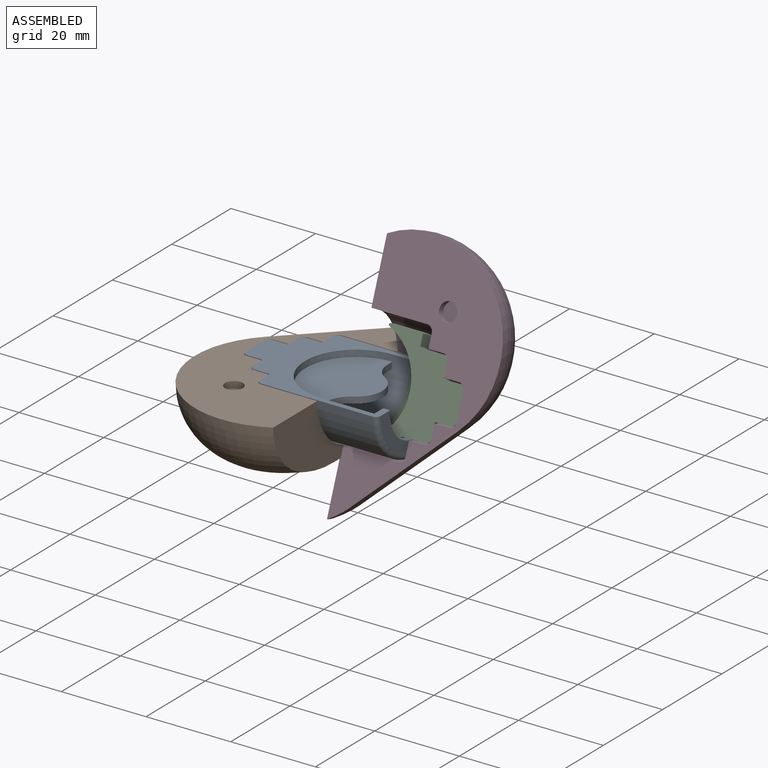
[diagram: assembled view]
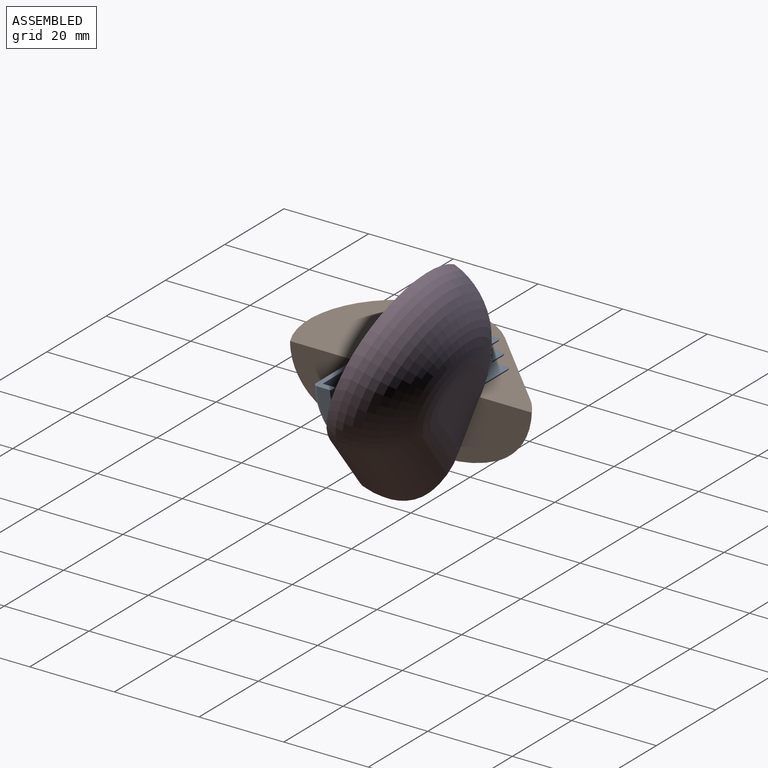
[diagram: assembled view, second angle]
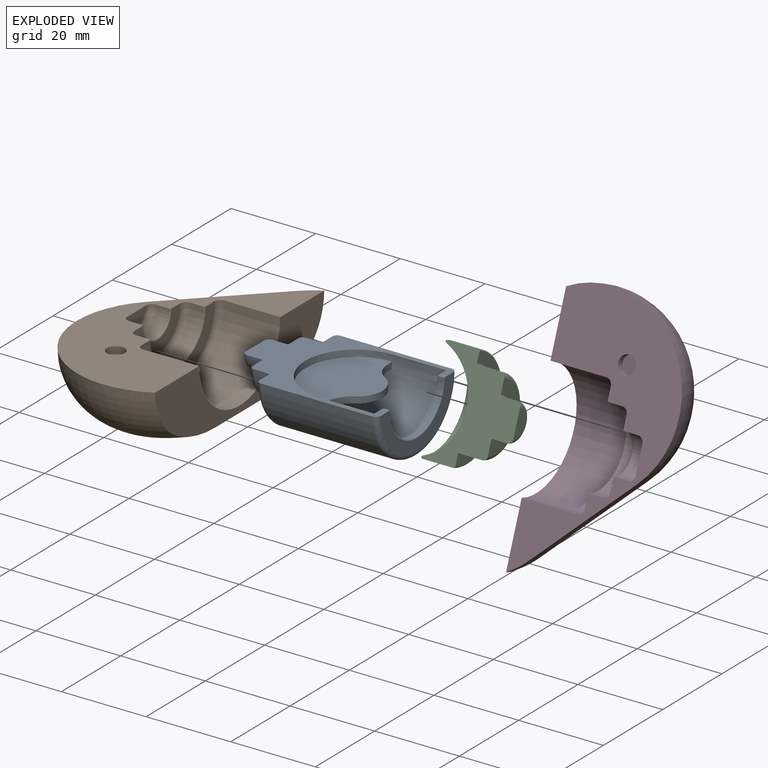
[diagram: exploded view]
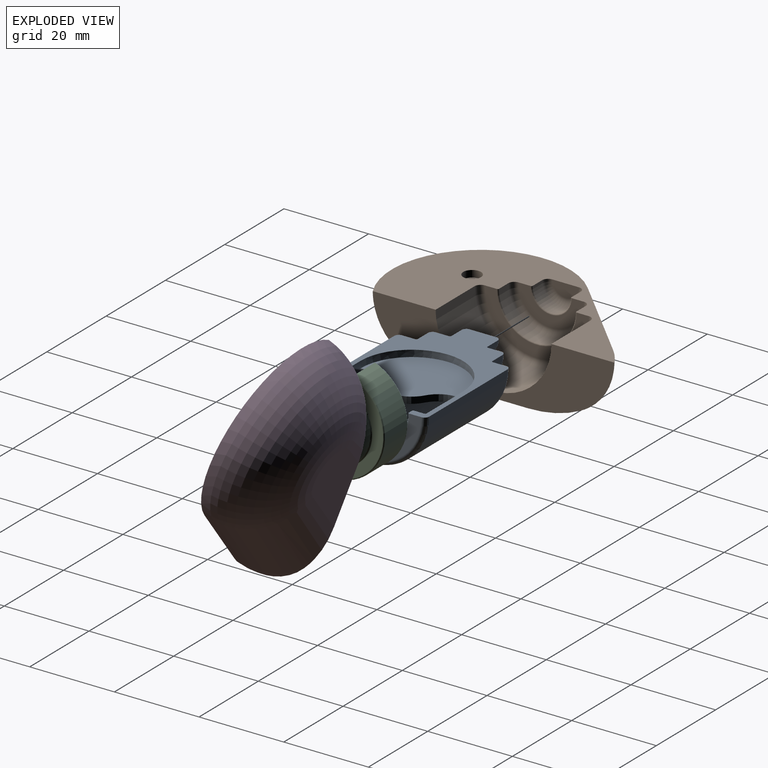
[diagram: exploded view, second angle]
ASSEMBLY  parts=4 mates=3
PART A: 29 faces, bbox 38.3x29x14.5 mm
  f0: sphere r=12.16mm, area 348.4mm2, adj f4,f24
  f1: plane 38.3x26.75mm, normal (0,0,1), area 319.6mm2, adj f2,f3,f4,f5,f6,f7,f8,f9
  f2: cylinder r=9.12mm len=18.24mm, axis (-1,0,0), area 28.3mm2, adj f1,f17,f21
  f3: sphere r=12.16mm, area 58.1mm2, adj f1,f4,f25
  f4: cylinder r=12.16mm len=24.32mm, axis (-1,0,0), area 473.2mm2, adj f0,f1,f3,f20,f22,f23
  f5: plane 23.71x11.86mm, normal (-1,0,0), area 81.3mm2, adj f1,f20,f21
  f6: plane 24.57x12.29mm, normal (1,0,0), area 97.6mm2, adj f1,f16,f17
  f7: cylinder r=13.38mm len=26.75mm, axis (1,0,0), area 1109.2mm2, adj f1,f8,f16
  f8: torus R=12.29mm, axis (1,0,0), area 69.8mm2, adj f1,f7,f9
  f9: plane 24.57x12.29mm, normal (-1,0,0), area 106.5mm2, adj f1,f8,f18
  f10: cylinder r=8.82mm len=17.63mm, axis (1,0,0), area 96.1mm2, adj f1,f11,f18
  f11: torus R=7.73mm, axis (1,0,0), area 45.3mm2, adj f1,f10,f12
  f12: plane 15.45x7.73mm, normal (-1,0,0), area 61.1mm2, adj f1,f11,f19
  f13: cylinder r=4.26mm len=8.51mm, axis (1,0,0), area 46.4mm2, adj f1,f14,f19
  f14: torus R=3.17mm, axis (1,0,0), area 20.8mm2, adj f1,f13,f15
  f15: plane 6.33x3.17mm, normal (-1,0,0), area 15.7mm2, adj f1,f14
  f16: torus R=12.29mm, axis (1,0,0), area 69.8mm2, adj f1,f6,f7
  f17: torus R=9.42mm, axis (1,0,0), area 13.8mm2, adj f1,f2,f6
  f18: torus R=9.12mm, axis (1,0,0), area 13.4mm2, adj f1,f9,f10
  f19: torus R=4.56mm, axis (-1,0,0), area 6.6mm2, adj f1,f12,f13
  f20: torus R=11.86mm, axis (1,0,0), area 18.1mm2, adj f1,f4,f5
  f21: torus R=9.42mm, axis (1,0,0), area 13.8mm2, adj f1,f2,f5
  f22: plane 1.53x1.52mm, normal (1,0,0), area 2.1mm2, adj f4,f24,f25,f27
  f23: plane 1.53x1.52mm, normal (1,0,0), area 2.1mm2, adj f4,f24,f25,f28
  f24: plane 23.55x17.85mm, normal (0,0,-1), area 281.8mm2, adj f0,f22,f23,f26,f27,f28
  f25: plane 24.13x18.14mm, normal (0,0,1), area 292.7mm2, adj f3,f22,f23,f26,f27,f28
  f26: cylinder r=6.08mm len=10.53mm, axis (0,0,1), area 19.4mm2, adj f24,f25,f27,f28
  f27: cylinder r=6.08mm len=5.27mm, axis (0,0,1), area 9.7mm2, adj f22,f24,f25,f26
  f28: cylinder r=6.08mm len=5.27mm, axis (0,0,1), area 9.7mm2, adj f23,f24,f25,f26
PART B: 20 faces, bbox 37.5x59.7x15.2 mm
  f0: plane 59.74x31.29mm, normal (0,0,1), area 758mm2, adj f3,f4,f5,f6,f7,f8,f9,f10
  f1: cylinder r=15.2mm len=12.4mm, axis (-0.71,-0.7,0), area 39.6mm2, adj f2,f5,f6
  f2: plane 24.19x16.09mm, normal (0,0,-1), area 221mm2, adj f1,f3,f5,f6
  f3: cylinder r=15.2mm len=31.29mm, axis (0.71,0.7,0), area 652.8mm2, adj f0,f2,f4,f5,f6
  f4: torus R=5.8mm, axis (0,0,1), area 54.8mm2, adj f0,f3,f6
  f5: torus R=5.8mm, axis (0,0,1), area 1106.1mm2, adj f0,f1,f2,f3,f6
  f6: plane 57.05x15.21mm, normal (1,0,0), area 449.8mm2, adj f0,f1,f2,f3,f4,f5,f7
  f7: cylinder r=13.68mm len=27.36mm, axis (1,0,0), area 567.2mm2, adj f0,f6,f8
  f8: torus R=12.29mm, axis (1,0,0), area 90.6mm2, adj f0,f7,f9
  f9: plane 24.57x12.29mm, normal (1,0,0), area 97.6mm2, adj f0,f8,f17
  f10: cylinder r=9.12mm len=18.24mm, axis (1,0,0), area 90.7mm2, adj f0,f11,f17
  f11: torus R=7.73mm, axis (1,0,0), area 59.2mm2, adj f0,f10,f12
  f12: plane 15.45x7.73mm, normal (1,0,0), area 56.6mm2, adj f0,f11,f16
  f13: cylinder r=4.56mm len=9.12mm, axis (1,0,0), area 45.4mm2, adj f0,f14,f16
  f14: torus R=3.17mm, axis (1,0,0), area 27.9mm2, adj f0,f13,f15
  f15: plane 6.33x3.17mm, normal (1,0,0), area 15.7mm2, adj f0,f14
  f16: torus R=4.86mm, axis (-1,0,0), area 7mm2, adj f0,f12,f13
  f17: torus R=9.42mm, axis (1,0,0), area 13.8mm2, adj f0,f9,f10
  f18: cylinder r=2.1mm len=4.2mm, axis (0,0,1), area 21.1mm2, adj f0,f19
  f19: plane 4.2x4.2mm, normal (0,0,1), area 13.9mm2, adj f18
PART C: 14 faces, bbox 19.6x25.7x12.8 mm
  f0: sphere r=12.16mm, area 290.1mm2, adj f1,f11
  f1: plane 23.71x19.64mm, normal (0,0,1), area 221.4mm2, adj f0,f2,f3,f4,f5,f6,f7,f8
  f2: cylinder r=11.86mm len=23.71mm, axis (-1,0,0), area 275.8mm2, adj f1,f11,f13
  f3: plane 23.1x11.55mm, normal (1,0,0), area 79mm2, adj f1,f12,f13
  f4: cylinder r=8.82mm len=17.63mm, axis (-1,0,0), area 148.7mm2, adj f1,f5,f12
  f5: torus R=7.73mm, axis (1,0,0), area 45.3mm2, adj f1,f4,f6
  f6: plane 15.45x7.73mm, normal (1,0,0), area 61.1mm2, adj f1,f5,f10
  f7: cylinder r=4.26mm len=8.51mm, axis (1,0,0), area 46.4mm2, adj f1,f8,f10
  f8: torus R=3.17mm, axis (1,0,0), area 20.8mm2, adj f1,f7,f9
  f9: plane 6.33x3.17mm, normal (1,0,0), area 15.7mm2, adj f1,f8
  f10: torus R=4.56mm, axis (-1,0,0), area 6.6mm2, adj f1,f6,f7
  f11: torus R=11.55mm, axis (-1,0,0), area 30.5mm2, adj f0,f1,f2
  f12: torus R=9.12mm, axis (1,0,0), area 13.4mm2, adj f1,f3,f4
  f13: torus R=11.55mm, axis (1,0,0), area 17.6mm2, adj f1,f2,f3
PART D: 20 faces, bbox 37.5x59.7x15.2 mm
  f0: plane 59.74x31.29mm, normal (0,0,1), area 758mm2, adj f3,f4,f5,f6,f7,f8,f9,f10
  f1: cylinder r=15.2mm len=12.4mm, axis (0.71,0.7,0), area 39.6mm2, adj f2,f5,f6
  f2: plane 24.19x16.09mm, normal (0,0,-1), area 221mm2, adj f1,f3,f5,f6
  f3: cylinder r=15.2mm len=31.29mm, axis (-0.71,-0.7,0), area 652.8mm2, adj f0,f2,f4,f5,f6
  f4: torus R=5.8mm, axis (0,0,1), area 54.8mm2, adj f0,f3,f6
  f5: torus R=5.8mm, axis (0,0,1), area 1106.1mm2, adj f0,f1,f2,f3,f6
  f6: plane 57.05x15.21mm, normal (-1,0,0), area 449.8mm2, adj f0,f1,f2,f3,f4,f5,f7
  f7: cylinder r=13.68mm len=27.36mm, axis (1,0,0), area 567.2mm2, adj f0,f6,f8
  f8: torus R=12.29mm, axis (1,0,0), area 90.6mm2, adj f0,f7,f9
  f9: plane 24.57x12.29mm, normal (-1,0,0), area 97.6mm2, adj f0,f8,f17
  f10: cylinder r=9.12mm len=18.24mm, axis (1,0,0), area 90.7mm2, adj f0,f11,f17
  f11: torus R=7.73mm, axis (1,0,0), area 59.2mm2, adj f0,f10,f12
  f12: plane 15.45x7.73mm, normal (-1,0,0), area 56.6mm2, adj f0,f11,f16
  f13: cylinder r=4.56mm len=9.12mm, axis (1,0,0), area 45.4mm2, adj f0,f14,f16
  f14: torus R=3.17mm, axis (1,0,0), area 27.9mm2, adj f0,f13,f15
  f15: plane 6.33x3.17mm, normal (-1,0,0), area 15.7mm2, adj f0,f14
  f16: torus R=4.86mm, axis (-1,0,0), area 7mm2, adj f0,f12,f13
  f17: torus R=9.42mm, axis (1,0,0), area 13.8mm2, adj f0,f9,f10
  f18: cylinder r=2.1mm len=4.2mm, axis (0,0,1), area 21.1mm2, adj f0,f19
  f19: plane 4.2x4.2mm, normal (0,0,1), area 13.9mm2, adj f18
PLACE A t=(-0.3,0,0)mm
PLACE B at identity fixed
PLACE C rot(axis=(1,0,0),69.2deg) t=(0.11,0,0)mm
PLACE D rot(axis=(1,0,0),69.2deg) t=(-0.2,0,0)mm
MATE fastened D.f15 <-> C.f9  axis (-1,0,0) through (24.12,1.26,-0.48)mm
MATE fastened A.f15 <-> B.f15  axis (-1,0,0) through (-24.32,0,-1.34)mm
MATE revolute A.f2 <-> C.f2  axis (-1,0,0) through (5.89,0,0)mm
